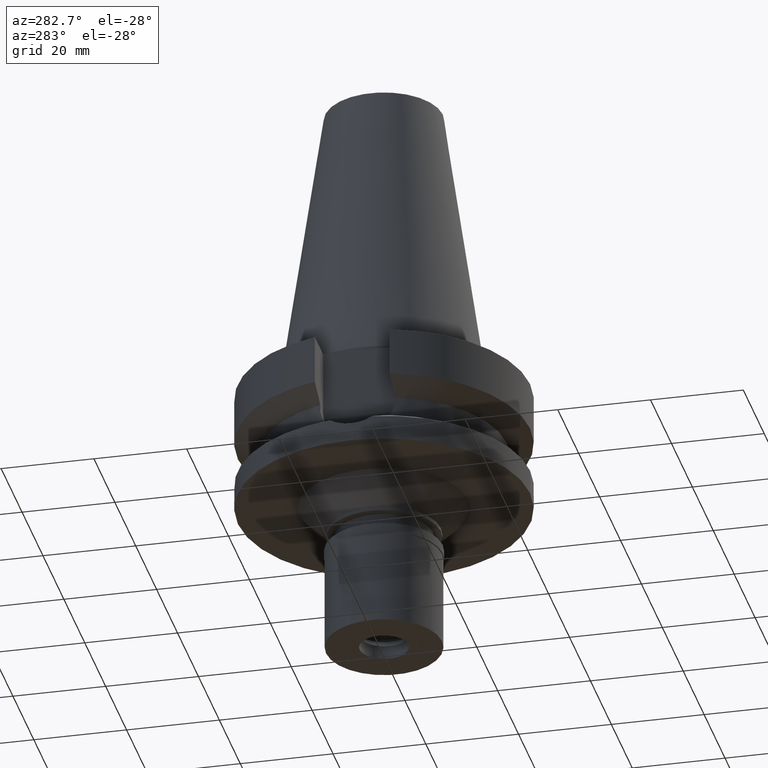
[diagram: clean part render]
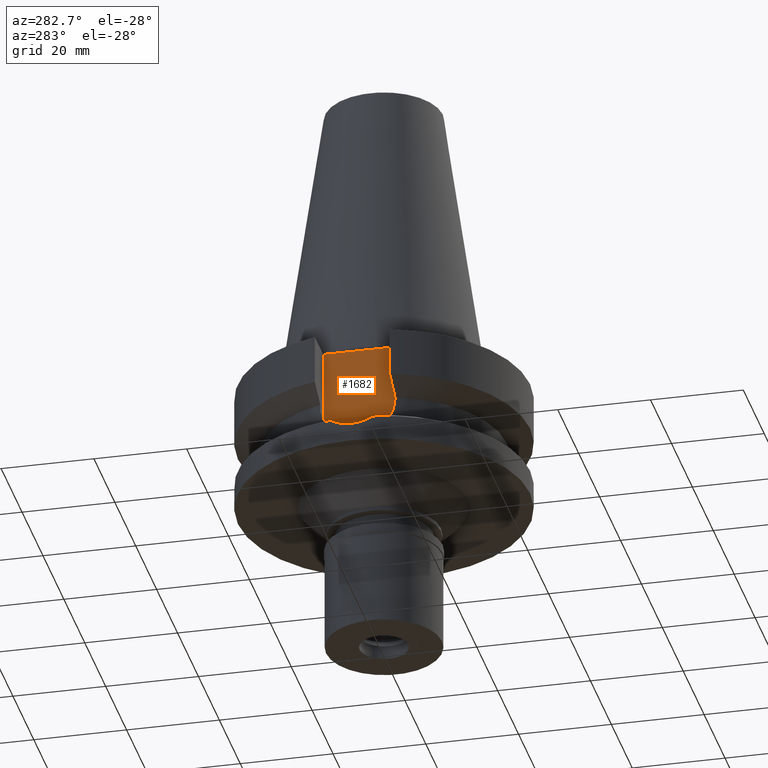
[diagram: same view with one face highlighted and labeled with its STEP entity id]
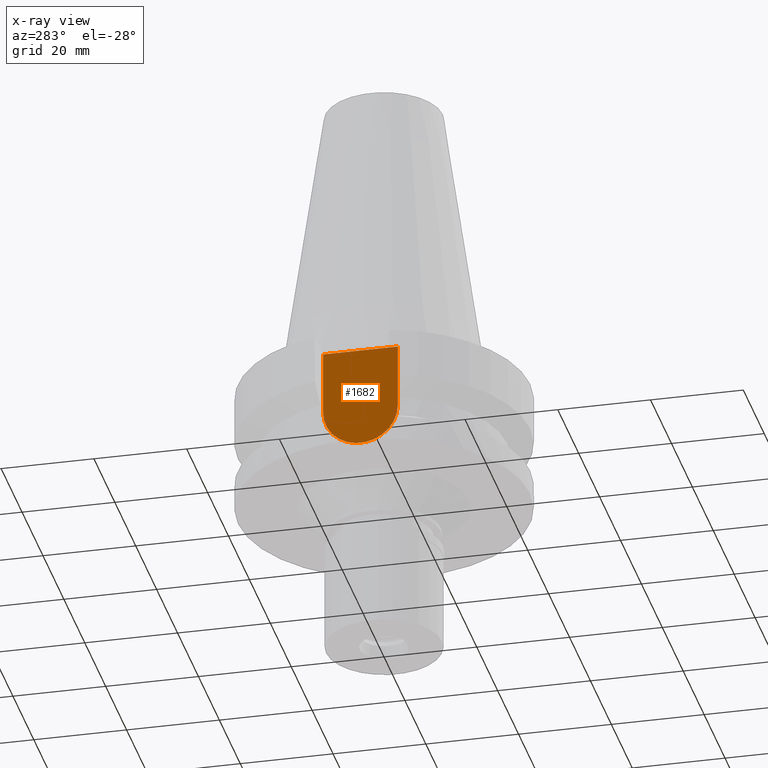
[diagram: x-ray of the same camera — body ghosted, the highlighted face saturated]
A machine part, auxiliary view. The second image highlights one B-rep face of the part: STEP entity #1682.
The next image is the same camera in x-ray: the body ghosted, the highlighted face saturated — about 0% of this face is hidden behind the body in this view.
In plain terms, the highlighted planar face has unit normal (-1, 0, 0).
Its self-contained STEP definition (entity closure, byte-faithful):
#55 = VERTEX_POINT ( 'NONE', #613 ) ;
#336 = FACE_OUTER_BOUND ( 'NONE', #1114, .T. ) ;
#346 = ORIENTED_EDGE ( 'NONE', *, *, #1661, .F. ) ;
#389 = LINE ( 'NONE', #1298, #1266 ) ;
#451 = VECTOR ( 'NONE', #1829, 1000.000000000000000 ) ;
#475 = ORIENTED_EDGE ( 'NONE', *, *, #710, .F. ) ;
#497 = VECTOR ( 'NONE', #2445, 1000.000000000000000 ) ;
#503 = CIRCLE ( 'NONE', #1184, 8.050000000000000711 ) ;
#611 = EDGE_CURVE ( 'NONE', #55, #1596, #1049, .T. ) ;
#613 = CARTESIAN_POINT ( 'NONE',  ( -22.50000000000000000, -8.050000000000000711, -1.000000000000000000 ) ) ;
#710 = EDGE_CURVE ( 'NONE', #1129, #1823, #389, .T. ) ;
#776 = PLANE ( 'NONE',  #2837 ) ;
#813 = DIRECTION ( 'NONE',  ( 0.0000000000000000000, 0.0000000000000000000, -1.000000000000000000 ) ) ;
#906 = DIRECTION ( 'NONE',  ( 0.0000000000000000000, 0.0000000000000000000, 1.000000000000000000 ) ) ;
#1049 = LINE ( 'NONE', #2270, #497 ) ;
#1114 = EDGE_LOOP ( 'NONE', ( #475, #346, #2468, #1839 ) ) ;
#1129 = VERTEX_POINT ( 'NONE', #2809 ) ;
#1184 = AXIS2_PLACEMENT_3D ( 'NONE', #2888, #1248, #813 ) ;
#1248 = DIRECTION ( 'NONE',  ( 1.000000000000000000, 0.0000000000000000000, 0.0000000000000000000 ) ) ;
#1266 = VECTOR ( 'NONE', #906, 1000.000000000000000 ) ;
#1298 = CARTESIAN_POINT ( 'NONE',  ( -22.50000000000000000, 8.050000000000000711, -14.94999999999999929 ) ) ;
#1540 = LINE ( 'NONE', #2962, #451 ) ;
#1596 = VERTEX_POINT ( 'NONE', #2183 ) ;
#1661 = EDGE_CURVE ( 'NONE', #1596, #1129, #503, .T. ) ;
#1682 = ADVANCED_FACE ( 'NONE', ( #336 ), #776, .T. ) ;
#1737 = DIRECTION ( 'NONE',  ( -1.000000000000000000, 0.0000000000000000000, 0.0000000000000000000 ) ) ;
#1793 = EDGE_CURVE ( 'NONE', #55, #1823, #1540, .T. ) ;
#1823 = VERTEX_POINT ( 'NONE', #1995 ) ;
#1829 = DIRECTION ( 'NONE',  ( 0.0000000000000000000, 1.000000000000000000, 0.0000000000000000000 ) ) ;
#1839 = ORIENTED_EDGE ( 'NONE', *, *, #1793, .T. ) ;
#1963 = CARTESIAN_POINT ( 'NONE',  ( -22.50000000000000000, 0.0000000000000000000, 0.0000000000000000000 ) ) ;
#1995 = CARTESIAN_POINT ( 'NONE',  ( -22.50000000000000000, 8.050000000000000711, -1.000000000000000000 ) ) ;
#2183 = CARTESIAN_POINT ( 'NONE',  ( -22.50000000000000000, -8.050000000000000711, -14.94999999999999929 ) ) ;
#2270 = CARTESIAN_POINT ( 'NONE',  ( -22.50000000000000000, -8.050000000000000711, -1.000000000000000000 ) ) ;
#2445 = DIRECTION ( 'NONE',  ( 0.0000000000000000000, 0.0000000000000000000, -1.000000000000000000 ) ) ;
#2468 = ORIENTED_EDGE ( 'NONE', *, *, #611, .F. ) ;
#2662 = DIRECTION ( 'NONE',  ( 0.0000000000000000000, 0.0000000000000000000, 1.000000000000000000 ) ) ;
#2809 = CARTESIAN_POINT ( 'NONE',  ( -22.50000000000000000, 8.050000000000000711, -14.94999999999999929 ) ) ;
#2837 = AXIS2_PLACEMENT_3D ( 'NONE', #1963, #1737, #2662 ) ;
#2888 = CARTESIAN_POINT ( 'NONE',  ( -22.50000000000000000, 0.0000000000000000000, -14.94999999999999929 ) ) ;
#2962 = CARTESIAN_POINT ( 'NONE',  ( -22.50000000000000000, -8.050000000000000711, -1.000000000000000000 ) ) ;